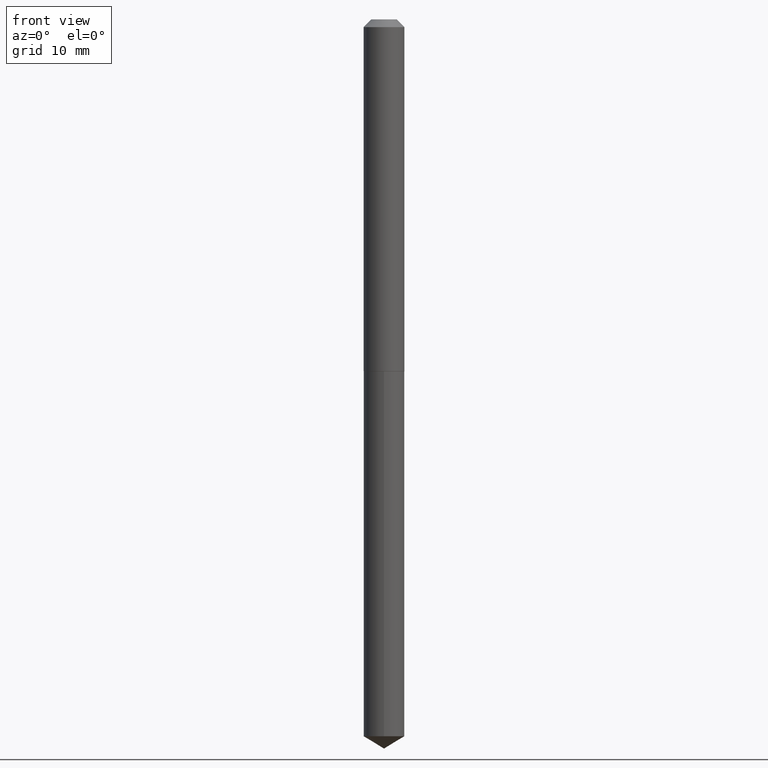
[diagram: clean part render]
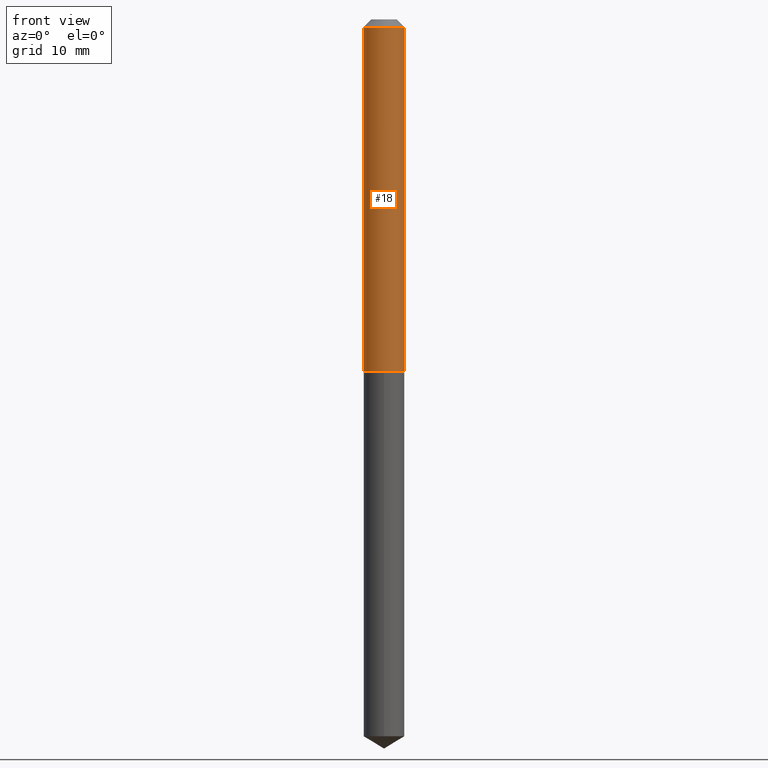
[diagram: same view with one face highlighted and labeled with its STEP entity id]
A machine part, front view. The second image highlights one B-rep face of the part: STEP entity #18.
In plain terms, the highlighted cylindrical surface (edge-blend (fillet) strip) has radius 2.1006 mm, axis along (-0, 0, 1).
Its self-contained STEP definition (entity closure, byte-faithful):
#9 = EDGE_CURVE ( 'NONE', #344, #64, #22, .T. ) ;
#18 = ADVANCED_FACE ( 'NONE', ( #84 ), #385, .T. ) ;
#22 = LINE ( 'NONE', #174, #325 ) ;
#25 = EDGE_CURVE ( 'NONE', #134, #344, #135, .T. ) ;
#27 = CARTESIAN_POINT ( 'NONE',  ( 3.484303955052581857E-29, -4.974662611583712996E-15, -1.424799999999999844 ) ) ;
#43 = CARTESIAN_POINT ( 'NONE',  ( 0.08270000000000014839, -5.552153625028367676E-15, -1.424799999999999844 ) ) ;
#51 = DIRECTION ( 'NONE',  ( -2.445468806185136877E-29, 3.491481338843145188E-15, 1.000000000000000000 ) ) ;
#64 = VERTEX_POINT ( 'NONE', #204 ) ;
#68 = DIRECTION ( 'NONE',  ( 1.000000000000000000, -6.982962677686267499E-15, 0.000000000000000000 ) ) ;
#74 = VERTEX_POINT ( 'NONE', #114 ) ;
#77 = DIRECTION ( 'NONE',  ( 1.000000000000000000, -6.982962677686267499E-15, 4.876176775795935793E-29 ) ) ;
#84 = FACE_OUTER_BOUND ( 'NONE', #185, .T. ) ;
#90 = DIRECTION ( 'NONE',  ( -2.445468806185136877E-29, 3.491481338843145188E-15, 1.000000000000000000 ) ) ;
#101 = DIRECTION ( 'NONE',  ( -2.445468806185136597E-29, 3.491481338843145583E-15, 1.000000000000000000 ) ) ;
#114 = CARTESIAN_POINT ( 'NONE',  ( -0.08269999999999999574, -1.954266859237676647E-15, -0.03125000000000020123 ) ) ;
#134 = VERTEX_POINT ( 'NONE', #177 ) ;
#135 = CIRCLE ( 'NONE', #305, 0.08270000000000014839 ) ;
#141 = CARTESIAN_POINT ( 'NONE',  ( 0.000000000000000000, 0.000000000000000000, 0.000000000000000000 ) ) ;
#144 = DIRECTION ( 'NONE',  ( 1.000000000000000000, -6.982962677686260400E-15, 0.000000000000000000 ) ) ;
#161 = EDGE_CURVE ( 'NONE', #134, #74, #326, .T. ) ;
#173 = VECTOR ( 'NONE', #90, 39.37007874015748143 ) ;
#174 = CARTESIAN_POINT ( 'NONE',  ( 0.08270000000000007900, -5.774910134446548770E-16, 4.032598193583242774E-30 ) ) ;
#177 = CARTESIAN_POINT ( 'NONE',  ( -0.08270000000000014839, -4.387043769110109384E-15, -1.424799999999999844 ) ) ;
#185 = EDGE_LOOP ( 'NONE', ( #338, #216, #366, #311 ) ) ;
#195 = DIRECTION ( 'NONE',  ( -2.445468806185136597E-29, 3.491481338843145583E-15, 1.000000000000000000 ) ) ;
#203 = CIRCLE ( 'NONE', #373, 0.08269999999999999574 ) ;
#204 = CARTESIAN_POINT ( 'NONE',  ( 0.08269999999999999574, -6.865998052835032874E-16, -0.03125000000000020123 ) ) ;
#216 = ORIENTED_EDGE ( 'NONE', *, *, #25, .T. ) ;
#236 = CARTESIAN_POINT ( 'NONE',  ( -0.08270000000000007900, 5.876188424736034151E-16, -4.067959319640811108E-30 ) ) ;
#248 = CARTESIAN_POINT ( 'NONE',  ( 7.642090019328600035E-31, -1.091087918388489897E-16, -0.03125000000000020123 ) ) ;
#305 = AXIS2_PLACEMENT_3D ( 'NONE', #27, #195, #144 ) ;
#308 = EDGE_CURVE ( 'NONE', #74, #64, #203, .T. ) ;
#311 = ORIENTED_EDGE ( 'NONE', *, *, #308, .F. ) ;
#325 = VECTOR ( 'NONE', #51, 39.37007874015748143 ) ;
#326 = LINE ( 'NONE', #236, #173 ) ;
#338 = ORIENTED_EDGE ( 'NONE', *, *, #161, .F. ) ;
#344 = VERTEX_POINT ( 'NONE', #43 ) ;
#364 = AXIS2_PLACEMENT_3D ( 'NONE', #141, #382, #77 ) ;
#366 = ORIENTED_EDGE ( 'NONE', *, *, #9, .T. ) ;
#373 = AXIS2_PLACEMENT_3D ( 'NONE', #248, #101, #68 ) ;
#382 = DIRECTION ( 'NONE',  ( -2.445468806185136597E-29, 3.491481338843145583E-15, 1.000000000000000000 ) ) ;
#385 = CYLINDRICAL_SURFACE ( 'NONE', #364, 0.08270000000000007900 ) ;